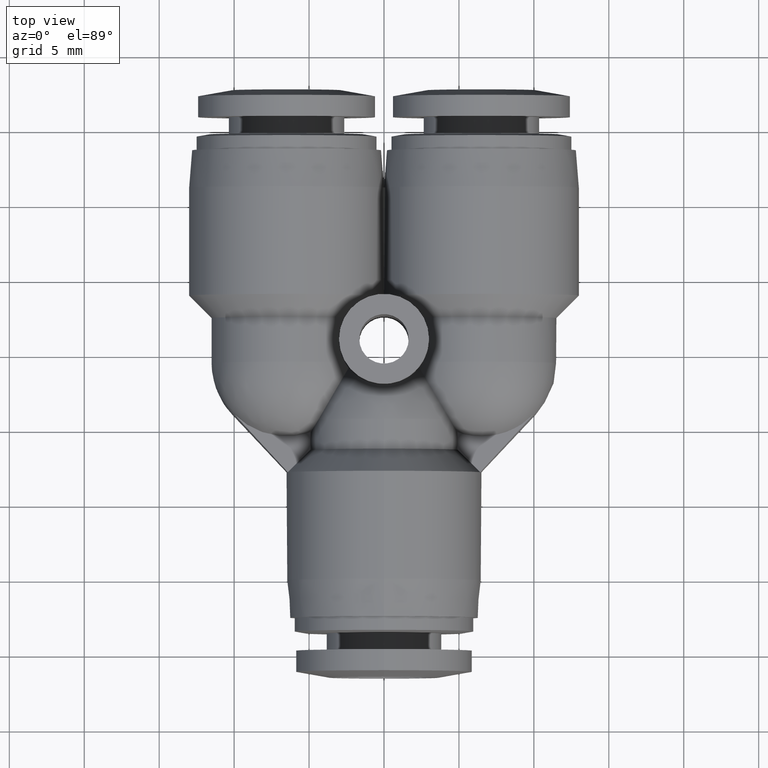
[diagram: clean part render]
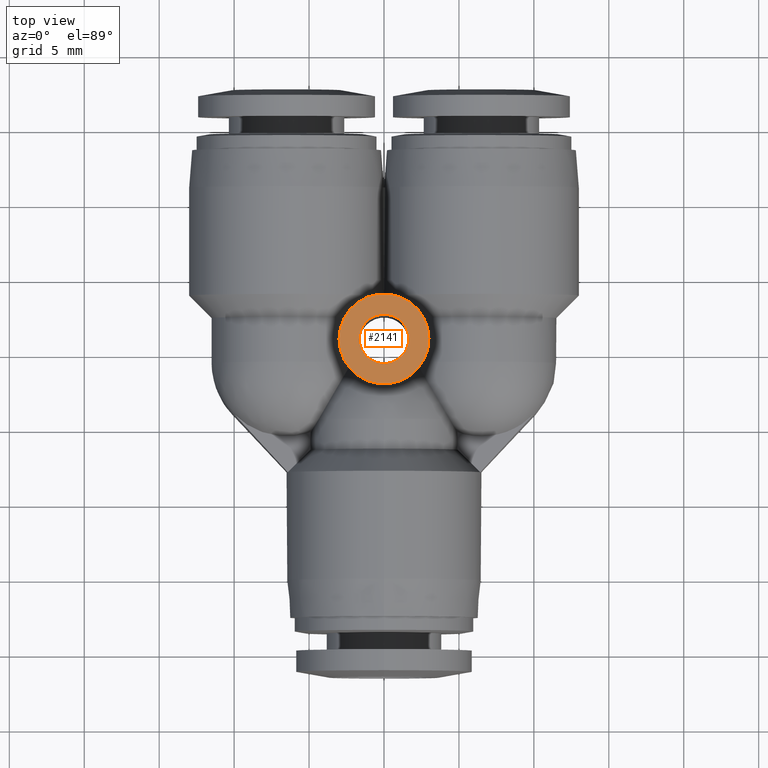
[diagram: same view with one face highlighted and labeled with its STEP entity id]
A machine part, top view. The second image highlights one B-rep face of the part: STEP entity #2141.
In plain terms, the highlighted planar face has unit normal (0, 0, -1).
Its self-contained STEP definition (entity closure, byte-faithful):
#62 = CIRCLE ( 'NONE', #3664, 0.06496062992125983800 ) ;
#79 = EDGE_LOOP ( 'NONE', ( #4320, #277 ) ) ;
#113 = FACE_OUTER_BOUND ( 'NONE', #3411, .T. ) ;
#141 = CIRCLE ( 'NONE', #2484, 0.1181102362205711000 ) ;
#277 = ORIENTED_EDGE ( 'NONE', *, *, #2491, .F. ) ;
#446 = DIRECTION ( 'NONE',  ( 0.0000000000000000000, 0.0000000000000000000, 1.000000000000000000 ) ) ;
#878 = EDGE_CURVE ( 'NONE', #5237, #1001, #141, .T. ) ;
#1001 = VERTEX_POINT ( 'NONE', #1374 ) ;
#1069 = EDGE_CURVE ( 'NONE', #4798, #4862, #62, .T. ) ;
#1374 = CARTESIAN_POINT ( 'NONE',  ( 0.1181102362204639300, 0.6299212598427199600, 0.2559055118110236700 ) ) ;
#1486 = CARTESIAN_POINT ( 'NONE',  ( -0.1181102362206782700, 0.6299212598427199600, 0.2559055118110236700 ) ) ;
#1545 = ORIENTED_EDGE ( 'NONE', *, *, #2156, .F. ) ;
#1571 = CIRCLE ( 'NONE', #2279, 0.06496062992125983800 ) ;
#1587 = PLANE ( 'NONE',  #3381 ) ;
#1784 = CIRCLE ( 'NONE', #3677, 0.1181102362205711000 ) ;
#2141 = ADVANCED_FACE ( 'NONE', ( #2960, #113 ), #1587, .F. ) ;
#2156 = EDGE_CURVE ( 'NONE', #1001, #5237, #1784, .T. ) ;
#2279 = AXIS2_PLACEMENT_3D ( 'NONE', #2568, #5713, #3001 ) ;
#2379 = DIRECTION ( 'NONE',  ( 1.000000000000000000, 0.0000000000000000000, 0.0000000000000000000 ) ) ;
#2419 = DIRECTION ( 'NONE',  ( -0.0000000000000000000, -0.0000000000000000000, -1.000000000000000000 ) ) ;
#2484 = AXIS2_PLACEMENT_3D ( 'NONE', #2620, #2419, #2379 ) ;
#2491 = EDGE_CURVE ( 'NONE', #4862, #4798, #1571, .T. ) ;
#2502 = CARTESIAN_POINT ( 'NONE',  ( -1.071758661417322900E-013, 0.6299212598427199600, 0.2559055118110236700 ) ) ;
#2523 = CARTESIAN_POINT ( 'NONE',  ( -1.071758661417322900E-013, 0.6299212598427199600, 0.2559055118110236700 ) ) ;
#2554 = CARTESIAN_POINT ( 'NONE',  ( 0.06496062992115267400, 0.6299212598427199600, 0.2559055118110236700 ) ) ;
#2568 = CARTESIAN_POINT ( 'NONE',  ( -1.071758661417322900E-013, 0.6299212598427199600, 0.2559055118110236700 ) ) ;
#2620 = CARTESIAN_POINT ( 'NONE',  ( -1.071758661417322900E-013, 0.6299212598427199600, 0.2559055118110236700 ) ) ;
#2938 = DIRECTION ( 'NONE',  ( -1.000000000000000000, 0.0000000000000000000, -0.0000000000000000000 ) ) ;
#2957 = DIRECTION ( 'NONE',  ( 1.000000000000000000, 0.0000000000000000000, 0.0000000000000000000 ) ) ;
#2960 = FACE_BOUND ( 'NONE', #79, .T. ) ;
#3001 = DIRECTION ( 'NONE',  ( 1.000000000000000000, 0.0000000000000000000, 0.0000000000000000000 ) ) ;
#3086 = CARTESIAN_POINT ( 'NONE',  ( -1.071758661417322900E-013, 0.6299212598427199600, 0.2559055118110236700 ) ) ;
#3381 = AXIS2_PLACEMENT_3D ( 'NONE', #2502, #5639, #2938 ) ;
#3411 = EDGE_LOOP ( 'NONE', ( #1545, #4832 ) ) ;
#3554 = DIRECTION ( 'NONE',  ( 1.000000000000000000, 0.0000000000000000000, 0.0000000000000000000 ) ) ;
#3664 = AXIS2_PLACEMENT_3D ( 'NONE', #3086, #446, #3554 ) ;
#3677 = AXIS2_PLACEMENT_3D ( 'NONE', #2523, #5657, #2957 ) ;
#4320 = ORIENTED_EDGE ( 'NONE', *, *, #1069, .F. ) ;
#4798 = VERTEX_POINT ( 'NONE', #2554 ) ;
#4832 = ORIENTED_EDGE ( 'NONE', *, *, #878, .F. ) ;
#4862 = VERTEX_POINT ( 'NONE', #5341 ) ;
#5237 = VERTEX_POINT ( 'NONE', #1486 ) ;
#5341 = CARTESIAN_POINT ( 'NONE',  ( -0.06496062992136701600, 0.6299212598427199600, 0.2559055118110236700 ) ) ;
#5639 = DIRECTION ( 'NONE',  ( 0.0000000000000000000, 0.0000000000000000000, -1.000000000000000000 ) ) ;
#5657 = DIRECTION ( 'NONE',  ( -0.0000000000000000000, -0.0000000000000000000, -1.000000000000000000 ) ) ;
#5713 = DIRECTION ( 'NONE',  ( 0.0000000000000000000, 0.0000000000000000000, 1.000000000000000000 ) ) ;